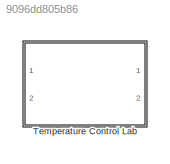
MODEL slx_9096dd805b86
KIND library
CONFIG AbsTol = auto
CONFIG EnableMultiTasking = off
CONFIG FixedStep = auto
CONFIG MaxStep = auto
CONFIG MinStep = auto
CONFIG RelTol = 1e-3
CONFIG SampleTimeConstraint = Unconstrained
CONFIG Solver = VariableStepAuto
CONFIG SolverName = VariableStepAuto
CONFIG StartTime = 0.0
CONFIG StopTime = 10.0
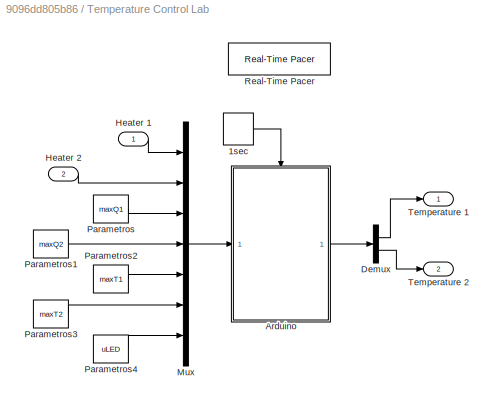
BLOCK [SubSystem] Temperature Control Lab
  Ports = [2, 2]
  RequestExecContextInheritance = off
BLOCK [DiscretePulseGenerator] Temperature Control Lab/1sec
  Period = 1
  Ports = [0, 1]
  PulseType = Time based
  PulseWidth = 50
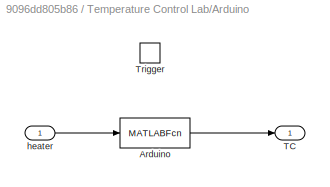
BLOCK [SubSystem] Temperature Control Lab/Arduino
  Ports = [1, 1, 0, 1]
  RequestExecContextInheritance = off
  TreatAsAtomicUnit = on
BLOCK [MATLABFcn] Temperature Control Lab/Arduino/Arduino
  MATLABFcn = DriverTemperatureLab
  OutputDimensions = 2
  Ports = [1, 1]
BLOCK [Outport] Temperature Control Lab/Arduino/TC
  IconDisplay = Port number
  InitialOutput = 23
BLOCK [TriggerPort] Temperature Control Lab/Arduino/Trigger
  Ports = []
  StatesWhenEnabling = held
  VariantControl = Variant
BLOCK [Inport] Temperature Control Lab/Arduino/heater
  IconDisplay = Port number
  LatchByDelayingOutsideSignal = on
BLOCK [Demux] Temperature Control Lab/Demux
  DisplayOption = bar
  Outputs = 2
  Ports = [1, 2]
BLOCK [Inport] Temperature Control Lab/Heater 1
  IconDisplay = Port number
BLOCK [Inport] Temperature Control Lab/Heater 2
  IconDisplay = Port number
  Port = 2
BLOCK [Mux] Temperature Control Lab/Mux
  DisplayOption = bar
  Inputs = 7
  Ports = [7, 1]
BLOCK [Constant] Temperature Control Lab/Parametros
  Value = maxQ1
BLOCK [Constant] Temperature Control Lab/Parametros1
  Value = maxQ2
BLOCK [Constant] Temperature Control Lab/Parametros2
  Value = maxT1
BLOCK [Constant] Temperature Control Lab/Parametros3
  Value = maxT2
BLOCK [Constant] Temperature Control Lab/Parametros4
  Value = uLED
BLOCK [Reference] Temperature Control Lab/Real-Time Pacer  REF=realtime_pacer_lib/Real-Time Pacer
  Ports = []
  SourceBlock = realtime_pacer_lib/Real-Time Pacer
  SourceType = RealTime_Pacer
BLOCK [Outport] Temperature Control Lab/Temperature 1
  IconDisplay = Port number
BLOCK [Outport] Temperature Control Lab/Temperature 2
  IconDisplay = Port number
  Port = 2
LINE Temperature Control Lab/1sec:1 -> Temperature Control Lab/Arduino:trigger
LINE Temperature Control Lab/Arduino/Arduino:1 -> Temperature Control Lab/Arduino/TC:1
LINE Temperature Control Lab/Arduino/heater:1 -> Temperature Control Lab/Arduino/Arduino:1
LINE Temperature Control Lab/Arduino:1 -> Temperature Control Lab/Demux:1
LINE Temperature Control Lab/Demux:1 -> Temperature Control Lab/Temperature 1:1
LINE Temperature Control Lab/Demux:2 -> Temperature Control Lab/Temperature 2:1
LINE Temperature Control Lab/Heater 1:1 -> Temperature Control Lab/Mux:1
LINE Temperature Control Lab/Heater 2:1 -> Temperature Control Lab/Mux:2
LINE Temperature Control Lab/Mux:1 -> Temperature Control Lab/Arduino:1
LINE Temperature Control Lab/Parametros1:1 -> Temperature Control Lab/Mux:4
LINE Temperature Control Lab/Parametros2:1 -> Temperature Control Lab/Mux:5
LINE Temperature Control Lab/Parametros3:1 -> Temperature Control Lab/Mux:6
LINE Temperature Control Lab/Parametros4:1 -> Temperature Control Lab/Mux:7
LINE Temperature Control Lab/Parametros:1 -> Temperature Control Lab/Mux:3
